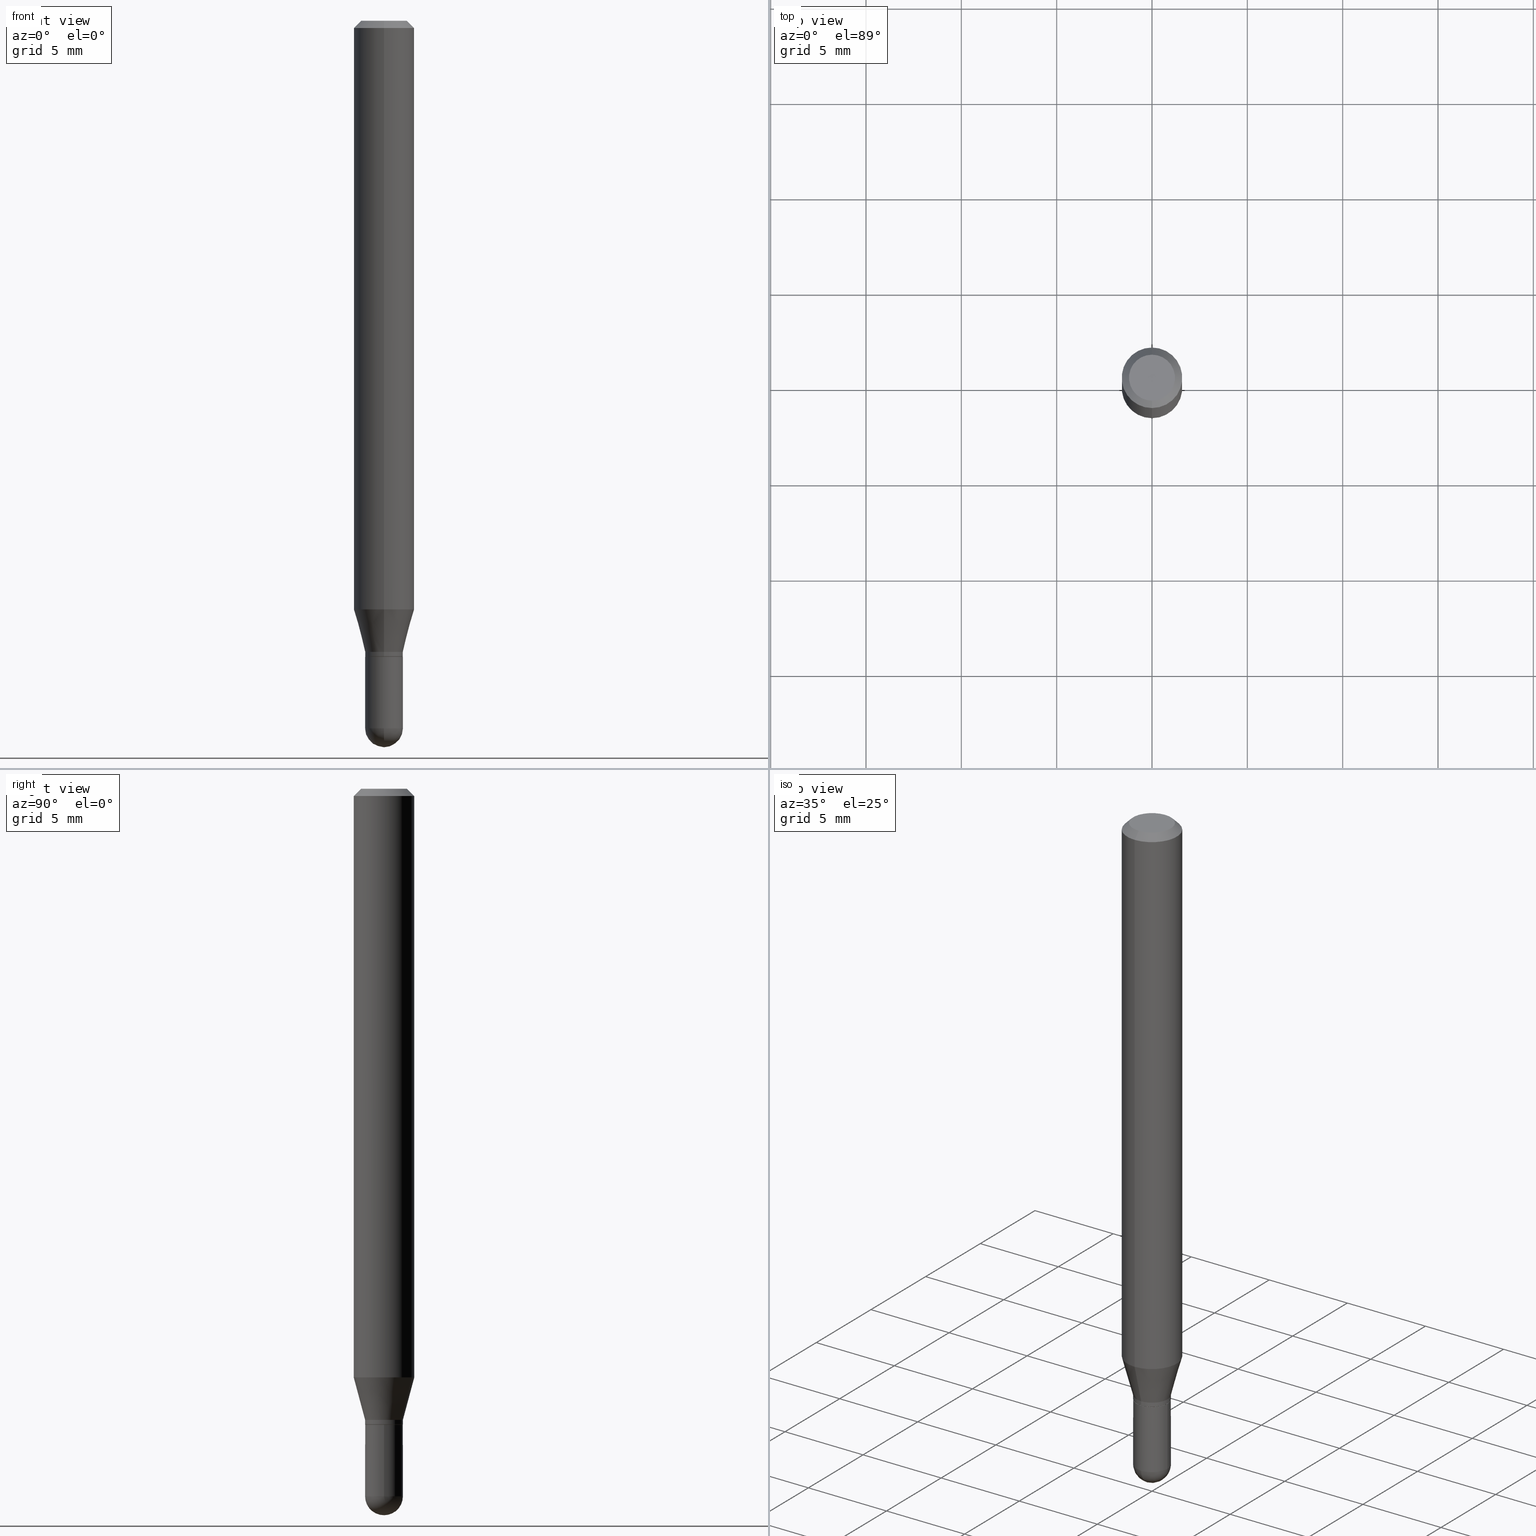
[diagram: canonical four-view strip — front | top / right | iso, engineering-drawing reading convention]
A machine part, canonical four-view strip (front | top / right | iso — engineering-drawing reading convention). The complete STEP part file that produces these views, byte-faithful:
ISO-10303-21;
HEADER;
FILE_DESCRIPTION (( 'STEP AP203' ),
    '1' );
FILE_NAME ('39110.STEP',
    '2024-03-08T12:44:43',
    ( '' ),
    ( '' ),
    'SwSTEP 2.0',
    'SolidWorks 2023',
    '' );
FILE_SCHEMA (( 'CONFIG_CONTROL_DESIGN' ));
ENDSEC;

DATA;
#1 = COORDINATED_UNIVERSAL_TIME_OFFSET ( 5, 0, .BEHIND. ) ;
#2 = DIRECTION ( 'NONE',  ( 1.000000000000000000, -6.982962677686266711E-15, 0.000000000000000000 ) ) ;
#3 = DIRECTION ( 'NONE',  ( -1.000000000000000000, 6.982962677686265922E-15, -4.883557194083112340E-29 ) ) ;
#4 = CARTESIAN_POINT ( 'NONE',  ( 8.758191564929115309E-45, -1.250185265265728213E-30, -3.581034872216010807E-16 ) ) ;
#5 = CONICAL_SURFACE ( 'NONE', #298, 0.06250000000000001388, 0.7853981633974473908 ) ;
#6 = ADVANCED_FACE ( 'NONE', ( #502 ), #104, .T. ) ;
#7 = CARTESIAN_POINT ( 'NONE',  ( 2.774669383143552228E-16, 0.03904999999999496374, -1.460950000000000193 ) ) ;
#8 = AXIS2_PLACEMENT_3D ( 'NONE', #336, #501, #382 ) ;
#9 = CC_DESIGN_PERSON_AND_ORGANIZATION_ASSIGNMENT ( #70, #28, ( #58 ) ) ;
#10 = VERTEX_POINT ( 'NONE', #338 ) ;
#11 = DIRECTION ( 'NONE',  ( -2.445715240831873182E-29, 3.491128430402830124E-15, 1.000000000000000000 ) ) ;
#12 = ORIENTED_EDGE ( 'NONE', *, *, #458, .T. ) ;
#13 = DIRECTION ( 'NONE',  ( 5.024295867788190974E-15, 0.7071067811865681119, 0.7071067811865270336 ) ) ;
#14 = ADVANCED_FACE ( 'NONE', ( #62 ), #496, .F. ) ;
#15 = CARTESIAN_POINT ( 'NONE',  ( 2.756905814749515687E-16, 0.03854999999999541432, -1.313000000000000389 ) ) ;
#16 = VECTOR ( 'NONE', #320, 39.37007874015748143 ) ;
#17 = CC_DESIGN_SECURITY_CLASSIFICATION ( #439, ( #140 ) ) ;
#18 = CYLINDRICAL_SURFACE ( 'NONE', #393, 0.03905000000000000832 ) ;
#19 = ORIENTED_EDGE ( 'NONE', *, *, #435, .F. ) ;
#20 = CARTESIAN_POINT ( 'NONE',  ( 0.03905000000000000832, -2.726846925636487675E-16, 1.904147030948313202E-30 ) ) ;
#21 = ORIENTED_EDGE ( 'NONE', *, *, #22, .T. ) ;
#22 = EDGE_CURVE ( 'NONE', #114, #451, #86, .T. ) ;
#23 = ORIENTED_EDGE ( 'NONE', *, *, #396, .F. ) ;
#24 = CARTESIAN_POINT ( 'NONE',  ( 2.972726297299607962E-29, -4.243408684315521466E-15, -1.215483408562511247 ) ) ;
#25 = DIRECTION ( 'NONE',  ( -6.982962677686265922E-15, -1.000000000000000000, 3.491128430402830124E-15 ) ) ;
#26 = SECURITY_CLASSIFICATION_LEVEL ( 'unclassified' ) ;
#27 = DIRECTION ( 'NONE',  ( -6.982962677686265922E-15, -1.000000000000000000, 0.000000000000000000 ) ) ;
#28 = PERSON_AND_ORGANIZATION_ROLE ( 'creator' ) ;
#29 = FACE_OUTER_BOUND ( 'NONE', #398, .T. ) ;
#30 = AXIS2_PLACEMENT_3D ( 'NONE', #24, #133, #250 ) ;
#31 = LOCAL_TIME ( 7, 44, 43.00000000000000000, #220 ) ;
#32 = COORDINATED_UNIVERSAL_TIME_OFFSET ( 5, 0, .BEHIND. ) ;
#33 = DIRECTION ( 'NONE',  ( -6.982962677686265133E-15, -1.000000000000000000, 3.491128430402829729E-15 ) ) ;
#34 = DATE_AND_TIME ( #353, #95 ) ;
#35 = CARTESIAN_POINT ( 'NONE',  ( 0.000000000000000000, 0.000000000000000000, 0.000000000000000000 ) ) ;
#36 = ORIENTED_EDGE ( 'NONE', *, *, #285, .T. ) ;
#37 = APPROVAL_ROLE ( '' ) ;
#38 = DIRECTION ( 'NONE',  ( -2.445715240831873182E-29, 3.491128430402830124E-15, 1.000000000000000000 ) ) ;
#39 = AXIS2_PLACEMENT_3D ( 'NONE', #156, #38, #277 ) ;
#40 = AXIS2_PLACEMENT_3D ( 'NONE', #80, #168, #42 ) ;
#41 = SPHERICAL_SURFACE ( 'NONE', #504, 0.03905000000000012628 ) ;
#42 = DIRECTION ( 'NONE',  ( 6.982962677686265922E-15, 1.000000000000000000, -3.483106191921934765E-15 ) ) ;
#43 = EDGE_CURVE ( 'NONE', #378, #10, #366, .T. ) ;
#44 = FACE_OUTER_BOUND ( 'NONE', #416, .T. ) ;
#45 = CIRCLE ( 'NONE', #264, 0.03905000000000012628 ) ;
#46 = FACE_OUTER_BOUND ( 'NONE', #344, .T. ) ;
#47 = VERTEX_POINT ( 'NONE', #394 ) ;
#48 = CARTESIAN_POINT ( 'NONE',  ( 3.186766958803931544E-29, -4.548940344814889109E-15, -1.303000000000000380 ) ) ;
#49 = EDGE_CURVE ( 'NONE', #378, #92, #354, .T. ) ;
#50 = CARTESIAN_POINT ( 'NONE',  ( -2.726846925636181991E-16, -0.03905000000000474758, -1.303000000000000380 ) ) ;
#51 = EDGE_LOOP ( 'NONE', ( #21, #190, #342, #23 ) ) ;
#52 = FACE_OUTER_BOUND ( 'NONE', #251, .T. ) ;
#53 = CONICAL_SURFACE ( 'NONE', #40, 0.06250000000000001388, 0.7853981633974473908 ) ;
#54 = VERTEX_POINT ( 'NONE', #221 ) ;
#55 = CARTESIAN_POINT ( 'NONE',  ( 3.663194072738837225E-29, -5.244395376890724291E-15, -1.500000000000000444 ) ) ;
#56 = ORIENTED_EDGE ( 'NONE', *, *, #222, .F. ) ;
#57 = DIRECTION ( 'NONE',  ( -1.807323732225331323E-15, -0.2588190451025183525, 0.9659258262890689783 ) ) ;
#58 = PRODUCT_DEFINITION ( 'UNKNOWN', '', #140, #296 ) ;
#59 = ORIENTED_EDGE ( 'NONE', *, *, #390, .T. ) ;
#60 = UNCERTAINTY_MEASURE_WITH_UNIT (LENGTH_MEASURE( 1.000000000000000082E-05 ), #102, 'distance_accuracy_value', 'NONE');
#61 = DIRECTION ( 'NONE',  ( -2.445715240831873182E-29, 3.491128430402830124E-15, 1.000000000000000000 ) ) ;
#62 = FACE_OUTER_BOUND ( 'NONE', #387, .T. ) ;
#63 = AXIS2_PLACEMENT_3D ( 'NONE', #466, #149, #276 ) ;
#64 = SHAPE_DEFINITION_REPRESENTATION ( #432, #164 ) ;
#65 = VERTEX_POINT ( 'NONE', #391 ) ;
#66 = ADVANCED_FACE ( 'NONE', ( #315 ), #399, .T. ) ;
#67 = DIRECTION ( 'NONE',  ( 1.000000000000000000, 0.000000000000000000, 0.000000000000000000 ) ) ;
#68 = DIRECTION ( 'NONE',  ( -4.851104656540959542E-15, -0.7071067811865493491, -0.7071067811865456854 ) ) ;
#69 = CC_DESIGN_DATE_AND_TIME_ASSIGNMENT ( #34, #106, ( #58 ) ) ;
#70 = PERSON_AND_ORGANIZATION ( #370, #490 ) ;
#71 = DIRECTION ( 'NONE',  ( -2.445715240831873182E-29, 3.491128430402830124E-15, 1.000000000000000000 ) ) ;
#72 = VECTOR ( 'NONE', #205, 39.37007874015748143 ) ;
#73 = PERSON_AND_ORGANIZATION ( #370, #490 ) ;
#74 = DIRECTION ( 'NONE',  ( 1.000000000000000000, -6.982962677686265133E-15, 0.000000000000000000 ) ) ;
#75 = ORIENTED_EDGE ( 'NONE', *, *, #228, .F. ) ;
#76 = DATE_TIME_ROLE ( 'classification_date' ) ;
#77 = DIRECTION ( 'NONE',  ( -2.445715240831873463E-29, 3.491128430402830124E-15, 1.000000000000000000 ) ) ;
#78 = DIRECTION ( 'NONE',  ( -6.982962677686265133E-15, -1.000000000000000000, 3.491128430402830124E-15 ) ) ;
#79 = CIRCLE ( 'NONE', #130, 0.03905000000000019567 ) ;
#80 = CARTESIAN_POINT ( 'NONE',  ( 3.668572861247897004E-31, -5.236692645604369505E-17, -0.01500000000000035853 ) ) ;
#81 = ADVANCED_FACE ( 'NONE', ( #29 ), #198, .T. ) ;
#82 = CARTESIAN_POINT ( 'NONE',  ( 2.739142246355506265E-16, 0.03854999999999541432, -1.313000000000000389 ) ) ;
#83 = ORIENTED_EDGE ( 'NONE', *, *, #222, .T. ) ;
#84 = CARTESIAN_POINT ( 'NONE',  ( 3.569368228036930558E-29, -5.105661907733563837E-15, -1.460950000000000193 ) ) ;
#85 = EDGE_LOOP ( 'NONE', ( #265, #126 ) ) ;
#86 = CIRCLE ( 'NONE', #297, 0.03905000000000019567 ) ;
#87 = VECTOR ( 'NONE', #288, 39.37007874015748143 ) ;
#88 = DIRECTION ( 'NONE',  ( 1.000000000000000000, -6.982962677686265922E-15, 4.883557194083112340E-29 ) ) ;
#89 = CARTESIAN_POINT ( 'NONE',  ( 3.668572861247897004E-31, -5.236692645604369505E-17, -0.01500000000000035853 ) ) ;
#90 = VERTEX_POINT ( 'NONE', #192 ) ;
#91 = CARTESIAN_POINT ( 'NONE',  ( -3.773273898774342241E-16, -0.04750000000000004219, -1.922748867774664941E-16 ) ) ;
#92 = VERTEX_POINT ( 'NONE', #507 ) ;
#93 = CARTESIAN_POINT ( 'NONE',  ( 2.774669383143515743E-16, 0.03904999999999547722, -1.312500000000000222 ) ) ;
#94 = AXIS2_PLACEMENT_3D ( 'NONE', #270, #224, #352 ) ;
#95 = LOCAL_TIME ( 7, 44, 43.00000000000000000, #1 ) ;
#96 = ORIENTED_EDGE ( 'NONE', *, *, #301, .T. ) ;
#97 = EDGE_CURVE ( 'NONE', #216, #160, #234, .T. ) ;
#98 = DIRECTION ( 'NONE',  ( -6.982962677686265922E-15, -1.000000000000000000, 0.000000000000000000 ) ) ;
#99 = CARTESIAN_POINT ( 'NONE',  ( 3.210001253591834077E-29, -4.582106064903715326E-15, -1.312500000000000222 ) ) ;
#100 = DIRECTION ( 'NONE',  ( -2.445468806185136597E-29, 3.491481338843145583E-15, 1.000000000000000000 ) ) ;
#101 = ORIENTED_EDGE ( 'NONE', *, *, #379, .F. ) ;
#102 =( CONVERSION_BASED_UNIT ( 'INCH', #459 ) LENGTH_UNIT ( ) NAMED_UNIT ( #461 ) );
#103 = ADVANCED_FACE ( 'NONE', ( #464 ), #419, .T. ) ;
#104 = CYLINDRICAL_SURFACE ( 'NONE', #384, 0.03905000000000019567 ) ;
#105 = PLANE ( 'NONE',  #63 ) ;
#106 = DATE_TIME_ROLE ( 'creation_date' ) ;
#107 = FACE_OUTER_BOUND ( 'NONE', #255, .T. ) ;
#108 = CALENDAR_DATE ( 2024, 8, 3 ) ;
#109 = CARTESIAN_POINT ( 'NONE',  ( 8.758191564929115309E-45, -1.250185265265728213E-30, -3.581034872216010807E-16 ) ) ;
#110 = APPLICATION_CONTEXT ( 'configuration controlled 3d designs of mechanical parts and assemblies' ) ;
#111 = VECTOR ( 'NONE', #68, 39.37007874015748143 ) ;
#112 = CIRCLE ( 'NONE', #348, 0.03905000000000019567 ) ;
#113 = EDGE_CURVE ( 'NONE', #300, #448, #154, .T. ) ;
#114 = VERTEX_POINT ( 'NONE', #436 ) ;
#115 = CC_DESIGN_APPROVAL ( #181, ( #140 ) ) ;
#116 = CC_DESIGN_PERSON_AND_ORGANIZATION_ASSIGNMENT ( #223, #510, ( #439 ) ) ;
#117 =( NAMED_UNIT ( * ) SI_UNIT ( $, .STERADIAN. ) SOLID_ANGLE_UNIT ( ) );
#118 = DIRECTION ( 'NONE',  ( -6.982962677686265922E-15, -1.000000000000000000, 0.000000000000000000 ) ) ;
#119 = CARTESIAN_POINT ( 'NONE',  ( -4.287811248607204268E-16, -0.06250000000000006939, -0.01500000000000014169 ) ) ;
#120 = DIRECTION ( 'NONE',  ( -6.982962677686265922E-15, -1.000000000000000000, 0.000000000000000000 ) ) ;
#121 = CONICAL_SURFACE ( 'NONE', #177, 0.03905000000000019567, 0.2617993877991504625 ) ;
#122 = VECTOR ( 'NONE', #299, 39.37007874015748143 ) ;
#123 = CARTESIAN_POINT ( 'NONE',  ( -2.691932112247734171E-16, -0.03855000000000458060, -1.313000000000000389 ) ) ;
#124 = ORIENTED_EDGE ( 'NONE', *, *, #375, .F. ) ;
#125 = DIRECTION ( 'NONE',  ( -6.982962677686265922E-15, -1.000000000000000000, 0.000000000000000000 ) ) ;
#126 = ORIENTED_EDGE ( 'NONE', *, *, #129, .T. ) ;
#127 = DIRECTION ( 'NONE',  ( -2.445715240831873182E-29, 3.491128430402830124E-15, 1.000000000000000000 ) ) ;
#128 = ORIENTED_EDGE ( 'NONE', *, *, #426, .F. ) ;
#129 = EDGE_CURVE ( 'NONE', #374, #90, #289, .T. ) ;
#130 = AXIS2_PLACEMENT_3D ( 'NONE', #322, #403, #479 ) ;
#131 = CARTESIAN_POINT ( 'NONE',  ( 4.440892098500626162E-16, 0.06250000000000001388, -2.181955269001769074E-16 ) ) ;
#132 = EDGE_LOOP ( 'NONE', ( #19, #83, #455, #142 ) ) ;
#133 = DIRECTION ( 'NONE',  ( -2.445715240831873182E-29, 3.491128430402830124E-15, 1.000000000000000000 ) ) ;
#134 = ORIENTED_EDGE ( 'NONE', *, *, #43, .T. ) ;
#135 = CARTESIAN_POINT ( 'NONE',  ( 0.03905000000000000832, -5.115282022505621222E-15, -1.460950000000000193 ) ) ;
#136 = ADVANCED_FACE ( 'NONE', ( #107 ), #503, .T. ) ;
#137 = DIRECTION ( 'NONE',  ( -6.982962677686265922E-15, -1.000000000000000000, 3.491128430402830124E-15 ) ) ;
#138 = DIRECTION ( 'NONE',  ( -2.445715240831873182E-29, 3.491128430402830124E-15, 1.000000000000000000 ) ) ;
#139 = AXIS2_PLACEMENT_3D ( 'NONE', #151, #189, #182 ) ;
#140 = PRODUCT_DEFINITION_FORMATION_WITH_SPECIFIED_SOURCE ( 'ANY', '', #232, .NOT_KNOWN. ) ;
#141 = CARTESIAN_POINT ( 'NONE',  ( 3.211224111212249912E-29, -4.583851629118917536E-15, -1.313000000000000389 ) ) ;
#142 = ORIENTED_EDGE ( 'NONE', *, *, #97, .F. ) ;
#143 = EDGE_CURVE ( 'NONE', #451, #300, #267, .T. ) ;
#144 = CARTESIAN_POINT ( 'NONE',  ( -4.364351673553916694E-16, -0.06250000000000001388, 2.181955269001769074E-16 ) ) ;
#145 = ORIENTED_EDGE ( 'NONE', *, *, #49, .F. ) ;
#146 = DIRECTION ( 'NONE',  ( 2.438088387897960049E-29, -3.491481338843145188E-15, -1.000000000000000000 ) ) ;
#147 = AXIS2_PLACEMENT_3D ( 'NONE', #231, #463, #118 ) ;
#148 = APPROVAL_STATUS ( 'not_yet_approved' ) ;
#149 = DIRECTION ( 'NONE',  ( 2.445715240831872622E-29, -3.491128430402830124E-15, -1.000000000000000000 ) ) ;
#150 = COORDINATED_UNIVERSAL_TIME_OFFSET ( 5, 0, .BEHIND. ) ;
#151 = CARTESIAN_POINT ( 'NONE',  ( 3.572707652396175485E-29, -5.100879661982893620E-15, -1.460950000000000193 ) ) ;
#152 = EDGE_CURVE ( 'NONE', #160, #47, #488, .T. ) ;
#153 = CALENDAR_DATE ( 2024, 8, 3 ) ;
#154 = LINE ( 'NONE', #346, #305 ) ;
#155 = CIRCLE ( 'NONE', #199, 0.03855000000000000093 ) ;
#156 = CARTESIAN_POINT ( 'NONE',  ( 3.211224111212249912E-29, -4.583851629118917536E-15, -1.313000000000000389 ) ) ;
#157 = ADVANCED_FACE ( 'NONE', ( #187 ), #105, .F. ) ;
#158 = CARTESIAN_POINT ( 'NONE',  ( 3.210001253591834077E-29, -4.582106064903715326E-15, -1.312500000000000222 ) ) ;
#159 = CARTESIAN_POINT ( 'NONE',  ( -4.364351673553621364E-16, -0.06250000000000427436, -1.215483408562511025 ) ) ;
#160 = VERTEX_POINT ( 'NONE', #431 ) ;
#161 = CIRCLE ( 'NONE', #279, 0.03905000000000019567 ) ;
#162 = CIRCLE ( 'NONE', #8, 0.03905000000000000138 ) ;
#163 = CARTESIAN_POINT ( 'NONE',  ( 0.000000000000000000, 0.000000000000000000, 0.000000000000000000 ) ) ;
#164 = ADVANCED_BREP_SHAPE_REPRESENTATION ( '39110', ( #474, #477, #420 ), #480 ) ;
#165 = LINE ( 'NONE', #131, #16 ) ;
#166 = ORIENTED_EDGE ( 'NONE', *, *, #285, .F. ) ;
#167 = EDGE_CURVE ( 'NONE', #413, #216, #330, .T. ) ;
#168 = DIRECTION ( 'NONE',  ( 2.445715240831873182E-29, -3.491128430402830124E-15, -1.000000000000000000 ) ) ;
#169 = ORIENTED_EDGE ( 'NONE', *, *, #143, .F. ) ;
#170 = AXIS2_PLACEMENT_3D ( 'NONE', #4, #201, #371 ) ;
#171 = LOCAL_TIME ( 7, 44, 43.00000000000000000, #150 ) ;
#172 = ORIENTED_EDGE ( 'NONE', *, *, #43, .F. ) ;
#173 = DIRECTION ( 'NONE',  ( -6.982962677686265922E-15, -1.000000000000000000, 3.483106191921934765E-15 ) ) ;
#174 = ORIENTED_EDGE ( 'NONE', *, *, #443, .T. ) ;
#175 = FACE_OUTER_BOUND ( 'NONE', #238, .T. ) ;
#176 = ORIENTED_EDGE ( 'NONE', *, *, #484, .F. ) ;
#177 = AXIS2_PLACEMENT_3D ( 'NONE', #363, #236, #440 ) ;
#178 = ORIENTED_EDGE ( 'NONE', *, *, #350, .F. ) ;
#179 = LINE ( 'NONE', #50, #281 ) ;
#180 = ORIENTED_EDGE ( 'NONE', *, *, #350, .T. ) ;
#181 = APPROVAL ( #148, 'UNSPECIFIED' ) ;
#182 = DIRECTION ( 'NONE',  ( 1.000000000000000000, -6.982962677686265133E-15, 0.000000000000000000 ) ) ;
#183 = DIRECTION ( 'NONE',  ( 1.839019923739601499E-15, 0.2588190451025251249, 0.9659258262890670910 ) ) ;
#184 = CIRCLE ( 'NONE', #478, 0.03855000000000000093 ) ;
#185 = PERSON_AND_ORGANIZATION_ROLE ( 'design_owner' ) ;
#186 = ADVANCED_FACE ( 'NONE', ( #425 ), #356, .F. ) ;
#187 = FACE_OUTER_BOUND ( 'NONE', #219, .T. ) ;
#188 = APPROVAL_DATE_TIME ( #318, #181 ) ;
#189 = DIRECTION ( 'NONE',  ( -2.445468806185136597E-29, 3.491481338843145583E-15, 1.000000000000000000 ) ) ;
#190 = ORIENTED_EDGE ( 'NONE', *, *, #143, .T. ) ;
#191 = COORDINATED_UNIVERSAL_TIME_OFFSET ( 5, 0, .BEHIND. ) ;
#192 = CARTESIAN_POINT ( 'NONE',  ( 0.03905000000000000138, -4.856999690464699711E-15, -1.313000000000000167 ) ) ;
#193 = AXIS2_PLACEMENT_3D ( 'NONE', #233, #400, #273 ) ;
#194 = CARTESIAN_POINT ( 'NONE',  ( -0.03905000000000000832, 2.774669383143191817E-16, -1.920844152744540988E-30 ) ) ;
#195 = DIRECTION ( 'NONE',  ( -2.445715240831873182E-29, 3.491128430402830124E-15, 1.000000000000000000 ) ) ;
#196 = DIRECTION ( 'NONE',  ( -4.937700262164674260E-15, -0.7071067811865632269, 0.7071067811865319186 ) ) ;
#197 = EDGE_LOOP ( 'NONE', ( #457, #381, #101, #467 ) ) ;
#198 = CONICAL_SURFACE ( 'NONE', #39, 0.03855000000000000093, 0.7853981633974739252 ) ;
#199 = AXIS2_PLACEMENT_3D ( 'NONE', #402, #127, #437 ) ;
#200 = ADVANCED_FACE ( 'NONE', ( #511 ), #475, .T. ) ;
#201 = DIRECTION ( 'NONE',  ( -2.445715240831873182E-29, 3.491128430402830124E-15, 1.000000000000000000 ) ) ;
#202 = ORIENTED_EDGE ( 'NONE', *, *, #152, .T. ) ;
#203 = DIRECTION ( 'NONE',  ( -2.445715240831873182E-29, 3.491128430402830124E-15, 1.000000000000000000 ) ) ;
#204 = ORIENTED_EDGE ( 'NONE', *, *, #258, .F. ) ;
#205 = DIRECTION ( 'NONE',  ( -2.445715240831873463E-29, 3.491128430402830124E-15, 1.000000000000000000 ) ) ;
#206 = ORIENTED_EDGE ( 'NONE', *, *, #339, .F. ) ;
#207 = ADVANCED_FACE ( 'NONE', ( #286 ), #41, .T. ) ;
#208 = AXIS2_PLACEMENT_3D ( 'NONE', #423, #71, #33 ) ;
#209 = CARTESIAN_POINT ( 'NONE',  ( -0.03905000000000000138, -4.565130391627653569E-15, -1.313000000000000167 ) ) ;
#210 = CIRCLE ( 'NONE', #324, 0.06250000000000000000 ) ;
#211 = ORIENTED_EDGE ( 'NONE', *, *, #396, .T. ) ;
#212 = PRODUCT_RELATED_PRODUCT_CATEGORY ( 'detail', '', ( #232 ) ) ;
#213 = CARTESIAN_POINT ( 'NONE',  ( 2.972726297299607962E-29, -4.243408684315521466E-15, -1.215483408562511247 ) ) ;
#214 = ORIENTED_EDGE ( 'NONE', *, *, #228, .T. ) ;
#215 = CARTESIAN_POINT ( 'NONE',  ( 3.211224111212249912E-29, -4.583851629118917536E-15, -1.313000000000000389 ) ) ;
#216 = VERTEX_POINT ( 'NONE', #7 ) ;
#217 = DIRECTION ( 'NONE',  ( -6.982962677686265922E-15, -1.000000000000000000, 4.370956789862821150E-15 ) ) ;
#218 = DIRECTION ( 'NONE',  ( -2.445715240831872622E-29, 3.491128430402830124E-15, 1.000000000000000000 ) ) ;
#219 = EDGE_LOOP ( 'NONE', ( #442, #134 ) ) ;
#220 = COORDINATED_UNIVERSAL_TIME_OFFSET ( 5, 0, .BEHIND. ) ;
#221 = CARTESIAN_POINT ( 'NONE',  ( -2.726846925636181991E-16, -0.03905000000000474758, -1.303000000000000380 ) ) ;
#222 = EDGE_CURVE ( 'NONE', #418, #47, #45, .T. ) ;
#223 = PERSON_AND_ORGANIZATION ( #370, #490 ) ;
#224 = DIRECTION ( 'NONE',  ( -2.445468806185136597E-29, 3.491481338843145583E-15, 1.000000000000000000 ) ) ;
#225 = VECTOR ( 'NONE', #13, 39.37007874015748143 ) ;
#226 = AXIS2_PLACEMENT_3D ( 'NONE', #407, #415, #493 ) ;
#227 = CARTESIAN_POINT ( 'NONE',  ( 0.000000000000000000, 0.000000000000000000, 0.000000000000000000 ) ) ;
#228 = EDGE_CURVE ( 'NONE', #451, #114, #112, .T. ) ;
#229 = DIRECTION ( 'NONE',  ( -2.445715240831873182E-29, 3.491128430402830124E-15, 1.000000000000000000 ) ) ;
#230 = APPROVAL_STATUS ( 'not_yet_approved' ) ;
#231 = CARTESIAN_POINT ( 'NONE',  ( 3.186766958803931544E-29, -4.548940344814889109E-15, -1.303000000000000380 ) ) ;
#232 = PRODUCT ( '39110', '39110', '', ( #505 ) ) ;
#233 = CARTESIAN_POINT ( 'NONE',  ( 0.000000000000000000, 0.000000000000000000, 0.000000000000000000 ) ) ;
#234 = CIRCLE ( 'NONE', #262, 0.03905000000000000832 ) ;
#235 = AXIS2_PLACEMENT_3D ( 'NONE', #312, #319, #2 ) ;
#236 = DIRECTION ( 'NONE',  ( -2.445715240831873182E-29, 3.491128430402830124E-15, 1.000000000000000000 ) ) ;
#237 = DIRECTION ( 'NONE',  ( -2.445715240831873182E-29, 3.491128430402830124E-15, 1.000000000000000000 ) ) ;
#238 = EDGE_LOOP ( 'NONE', ( #333, #36, #368, #176, #433 ) ) ;
#239 = ADVANCED_FACE ( 'NONE', ( #241 ), #5, .T. ) ;
#240 = CC_DESIGN_DATE_AND_TIME_ASSIGNMENT ( #469, #76, ( #439 ) ) ;
#241 = FACE_OUTER_BOUND ( 'NONE', #441, .T. ) ;
#242 = ORIENTED_EDGE ( 'NONE', *, *, #301, .F. ) ;
#243 = AXIS2_PLACEMENT_3D ( 'NONE', #509, #146, #308 ) ;
#244 = CC_DESIGN_APPROVAL ( #453, ( #439 ) ) ;
#245 = CARTESIAN_POINT ( 'NONE',  ( 3.572707652396175485E-29, -5.100879661982893620E-15, -1.460950000000000193 ) ) ;
#246 = ORIENTED_EDGE ( 'NONE', *, *, #49, .T. ) ;
#247 = DIRECTION ( 'NONE',  ( -6.982962677686265922E-15, -1.000000000000000000, 3.483106191921934765E-15 ) ) ;
#248 = ADVANCED_FACE ( 'NONE', ( #46 ), #385, .T. ) ;
#249 = ORIENTED_EDGE ( 'NONE', *, *, #268, .F. ) ;
#250 = DIRECTION ( 'NONE',  ( -6.982962677686265922E-15, -1.000000000000000000, 4.370956789862821150E-15 ) ) ;
#251 = EDGE_LOOP ( 'NONE', ( #56, #287, #295, #408 ) ) ;
#252 = CIRCLE ( 'NONE', #30, 0.06250000000000000000 ) ;
#253 = CIRCLE ( 'NONE', #226, 0.03905000000000012628 ) ;
#254 = DIRECTION ( 'NONE',  ( -2.445715240831873463E-29, 3.491128430402830124E-15, 1.000000000000000000 ) ) ;
#255 = EDGE_LOOP ( 'NONE', ( #166, #202, #293, #410, #261 ) ) ;
#256 = CARTESIAN_POINT ( 'NONE',  ( -2.726846925636500494E-16, -0.03905000000000019567, 1.363285652072311966E-16 ) ) ;
#257 = ORIENTED_EDGE ( 'NONE', *, *, #379, .T. ) ;
#258 = EDGE_CURVE ( 'NONE', #10, #378, #438, .T. ) ;
#259 = DIRECTION ( 'NONE',  ( -6.982962677686265922E-15, -1.000000000000000000, 3.491128430402830124E-15 ) ) ;
#260 = CC_DESIGN_PERSON_AND_ORGANIZATION_ASSIGNMENT ( #73, #185, ( #232 ) ) ;
#261 = ORIENTED_EDGE ( 'NONE', *, *, #129, .F. ) ;
#262 = AXIS2_PLACEMENT_3D ( 'NONE', #362, #434, #74 ) ;
#263 = APPROVAL_ROLE ( '' ) ;
#264 = AXIS2_PLACEMENT_3D ( 'NONE', #84, #3, #125 ) ;
#265 = ORIENTED_EDGE ( 'NONE', *, *, #506, .T. ) ;
#266 = APPLICATION_PROTOCOL_DEFINITION ( 'international standard', 'config_control_design', 1994, #110 ) ;
#267 = LINE ( 'NONE', #397, #468 ) ;
#268 = EDGE_CURVE ( 'NONE', #448, #65, #165, .T. ) ;
#269 = APPLICATION_PROTOCOL_DEFINITION ( 'international standard', 'config_control_design', 1994, #512 ) ;
#270 = CARTESIAN_POINT ( 'NONE',  ( 3.572707652396175485E-29, -5.100879661982893620E-15, -1.460950000000000193 ) ) ;
#271 = CC_DESIGN_PERSON_AND_ORGANIZATION_ASSIGNMENT ( #306, #309, ( #140 ) ) ;
#272 = CALENDAR_DATE ( 2024, 8, 3 ) ;
#273 = DIRECTION ( 'NONE',  ( 1.000000000000000000, -6.982962677686266711E-15, 4.876176775795935232E-29 ) ) ;
#274 = ORIENTED_EDGE ( 'NONE', *, *, #22, .F. ) ;
#275 = PERSON_AND_ORGANIZATION ( #370, #490 ) ;
#276 = DIRECTION ( 'NONE',  ( 6.982962677686265922E-15, 1.000000000000000000, -3.491128430402830124E-15 ) ) ;
#277 = DIRECTION ( 'NONE',  ( -6.982962677686265133E-15, -1.000000000000000000, 0.000000000000000000 ) ) ;
#278 = FACE_OUTER_BOUND ( 'NONE', #372, .T. ) ;
#279 = AXIS2_PLACEMENT_3D ( 'NONE', #48, #203, #373 ) ;
#280 = AXIS2_PLACEMENT_3D ( 'NONE', #245, #406, #329 ) ;
#281 = VECTOR ( 'NONE', #57, 39.37007874015748854 ) ;
#282 = LINE ( 'NONE', #82, #225 ) ;
#283 = ORIENTED_EDGE ( 'NONE', *, *, #443, .F. ) ;
#284 = ADVANCED_FACE ( 'NONE', ( #326 ), #121, .T. ) ;
#285 = EDGE_CURVE ( 'NONE', #160, #374, #485, .T. ) ;
#286 = FACE_OUTER_BOUND ( 'NONE', #132, .T. ) ;
#287 = ORIENTED_EDGE ( 'NONE', *, *, #435, .T. ) ;
#288 = DIRECTION ( 'NONE',  ( -2.445468806185136877E-29, 3.491481338843145188E-15, 1.000000000000000000 ) ) ;
#289 = CIRCLE ( 'NONE', #235, 0.03905000000000000138 ) ;
#290 = CARTESIAN_POINT ( 'NONE',  ( 3.569368228036930558E-29, -5.105661907733563837E-15, -1.460950000000000193 ) ) ;
#291 = ORIENTED_EDGE ( 'NONE', *, *, #458, .F. ) ;
#292 = SPHERICAL_SURFACE ( 'NONE', #452, 0.03905000000000012628 ) ;
#293 = ORIENTED_EDGE ( 'NONE', *, *, #337, .T. ) ;
#294 = CARTESIAN_POINT ( 'NONE',  ( 0.000000000000000000, 0.000000000000000000, 0.000000000000000000 ) ) ;
#295 = ORIENTED_EDGE ( 'NONE', *, *, #167, .F. ) ;
#296 = DESIGN_CONTEXT ( 'detailed design', #110, 'design' ) ;
#297 = AXIS2_PLACEMENT_3D ( 'NONE', #99, #389, #27 ) ;
#298 = AXIS2_PLACEMENT_3D ( 'NONE', #482, #405, #447 ) ;
#299 = DIRECTION ( 'NONE',  ( 4.937700262164543309E-15, 0.7071067811865444641, -0.7071067811865505703 ) ) ;
#300 = VERTEX_POINT ( 'NONE', #476 ) ;
#301 = EDGE_CURVE ( 'NONE', #422, #500, #155, .T. ) ;
#302 = EDGE_LOOP ( 'NONE', ( #257, #383, #128, #483 ) ) ;
#303 =( LENGTH_UNIT ( ) NAMED_UNIT ( * ) SI_UNIT ( $, .METRE. ) );
#304 = EDGE_LOOP ( 'NONE', ( #450, #481, #460, #283 ) ) ;
#305 = VECTOR ( 'NONE', #183, 39.37007874015748854 ) ;
#306 = PERSON_AND_ORGANIZATION ( #370, #490 ) ;
#307 = CC_DESIGN_APPROVAL ( #358, ( #58 ) ) ;
#308 = DIRECTION ( 'NONE',  ( -1.000000000000000000, 6.982962677686265922E-15, -4.876176775795935793E-29 ) ) ;
#309 = PERSON_AND_ORGANIZATION_ROLE ( 'design_supplier' ) ;
#310 = DIRECTION ( 'NONE',  ( -6.982962677686265133E-15, -1.000000000000000000, 3.491128430402829729E-15 ) ) ;
#311 = DIRECTION ( 'NONE',  ( 0.000000000000000000, 0.000000000000000000, 1.000000000000000000 ) ) ;
#312 = CARTESIAN_POINT ( 'NONE',  ( 3.210900542521084585E-29, -4.584314997901050598E-15, -1.313000000000000167 ) ) ;
#313 = APPROVAL_ROLE ( '' ) ;
#314 = CLOSED_SHELL ( 'NONE', ( #6, #248, #239, #66, #284, #103, #200, #317, #157, #14, #81, #357 ) ) ;
#315 = FACE_OUTER_BOUND ( 'NONE', #302, .T. ) ;
#316 = AXIS2_PLACEMENT_3D ( 'NONE', #364, #11, #325 ) ;
#317 = ADVANCED_FACE ( 'NONE', ( #278 ), #53, .T. ) ;
#318 = DATE_AND_TIME ( #108, #171 ) ;
#319 = DIRECTION ( 'NONE',  ( -2.445468806185136597E-29, 3.491481338843145583E-15, 1.000000000000000000 ) ) ;
#320 = DIRECTION ( 'NONE',  ( -2.445715240831873463E-29, 3.491128430402830124E-15, 1.000000000000000000 ) ) ;
#321 = EDGE_CURVE ( 'NONE', #500, #114, #444, .T. ) ;
#322 = CARTESIAN_POINT ( 'NONE',  ( 3.186766958803931544E-29, -4.548940344814889109E-15, -1.303000000000000380 ) ) ;
#323 = ORIENTED_EDGE ( 'NONE', *, *, #321, .T. ) ;
#324 = AXIS2_PLACEMENT_3D ( 'NONE', #213, #449, #217 ) ;
#325 = DIRECTION ( 'NONE',  ( -6.982962677686265133E-15, -1.000000000000000000, 0.000000000000000000 ) ) ;
#326 = FACE_OUTER_BOUND ( 'NONE', #197, .T. ) ;
#327 = VERTEX_POINT ( 'NONE', #159 ) ;
#328 = EDGE_CURVE ( 'NONE', #65, #92, #462, .T. ) ;
#329 = DIRECTION ( 'NONE',  ( 1.000000000000000000, -6.982962677686265133E-15, 0.000000000000000000 ) ) ;
#330 = CIRCLE ( 'NONE', #139, 0.03905000000000000832 ) ;
#331 = EDGE_CURVE ( 'NONE', #54, #300, #79, .T. ) ;
#332 =( NAMED_UNIT ( * ) PLANE_ANGLE_UNIT ( ) SI_UNIT ( $, .RADIAN. ) );
#333 = ORIENTED_EDGE ( 'NONE', *, *, #97, .T. ) ;
#334 = DIRECTION ( 'NONE',  ( 1.000000000000000000, -6.982962677686266711E-15, 4.876176775795935232E-29 ) ) ;
#335 = CARTESIAN_POINT ( 'NONE',  ( 0.000000000000000000, 0.000000000000000000, 0.000000000000000000 ) ) ;
#336 = CARTESIAN_POINT ( 'NONE',  ( 3.210900542521084585E-29, -4.584314997901050598E-15, -1.313000000000000167 ) ) ;
#337 = EDGE_CURVE ( 'NONE', #47, #413, #392, .T. ) ;
#338 = CARTESIAN_POINT ( 'NONE',  ( 3.840629472727450339E-16, 0.04750000000000004219, -5.239320876657356674E-16 ) ) ;
#339 = EDGE_CURVE ( 'NONE', #300, #54, #161, .T. ) ;
#340 = AXIS2_PLACEMENT_3D ( 'NONE', #141, #218, #25 ) ;
#341 = DIRECTION ( 'NONE',  ( -2.445468806185136877E-29, 3.491481338843145188E-15, 1.000000000000000000 ) ) ;
#342 = ORIENTED_EDGE ( 'NONE', *, *, #331, .F. ) ;
#343 = CARTESIAN_POINT ( 'NONE',  ( -2.691932112247734171E-16, -0.03855000000000458060, -1.313000000000000389 ) ) ;
#344 = EDGE_LOOP ( 'NONE', ( #489, #180, #274, #486 ) ) ;
#345 = PERSON_AND_ORGANIZATION ( #370, #490 ) ;
#346 = CARTESIAN_POINT ( 'NONE',  ( 2.774669383143523138E-16, 0.03904999999999564375, -1.303000000000000380 ) ) ;
#347 = CLOSED_SHELL ( 'NONE', ( #428, #388, #186, #207, #136 ) ) ;
#348 = AXIS2_PLACEMENT_3D ( 'NONE', #158, #195, #120 ) ;
#349 = APPROVAL_STATUS ( 'not_yet_approved' ) ;
#350 = EDGE_CURVE ( 'NONE', #422, #451, #282, .T. ) ;
#351 = AXIS2_PLACEMENT_3D ( 'NONE', #495, #491, #173 ) ;
#352 = DIRECTION ( 'NONE',  ( 1.000000000000000000, -6.982962677686265133E-15, 0.000000000000000000 ) ) ;
#353 = CALENDAR_DATE ( 2024, 8, 3 ) ;
#354 = LINE ( 'NONE', #119, #111 ) ;
#355 = PERSON_AND_ORGANIZATION ( #370, #490 ) ;
#356 = PLANE ( 'NONE',  #243 ) ;
#357 = ADVANCED_FACE ( 'NONE', ( #44 ), #365, .T. ) ;
#358 = APPROVAL ( #349, 'UNSPECIFIED' ) ;
#359 = ORIENTED_EDGE ( 'NONE', *, *, #328, .F. ) ;
#360 = CALENDAR_DATE ( 2024, 8, 3 ) ;
#361 = AXIS2_PLACEMENT_3D ( 'NONE', #35, #471, #310 ) ;
#362 = CARTESIAN_POINT ( 'NONE',  ( 3.572707652396175485E-29, -5.100879661982893620E-15, -1.460950000000000193 ) ) ;
#363 = CARTESIAN_POINT ( 'NONE',  ( 3.186766958803931544E-29, -4.548940344814889109E-15, -1.303000000000000380 ) ) ;
#364 = CARTESIAN_POINT ( 'NONE',  ( 3.211224111212249912E-29, -4.583851629118917536E-15, -1.313000000000000389 ) ) ;
#365 = CYLINDRICAL_SURFACE ( 'NONE', #411, 0.03905000000000019567 ) ;
#366 = CIRCLE ( 'NONE', #427, 0.04750000000000004219 ) ;
#367 = VECTOR ( 'NONE', #254, 39.37007874015748143 ) ;
#368 = ORIENTED_EDGE ( 'NONE', *, *, #506, .F. ) ;
#369 = APPROVAL_PERSON_ORGANIZATION ( #345, #358, #313 ) ;
#370 = PERSON ( 'UNSPECIFIED', 'UNSPECIFIED', 'UNSPECIFIED', ('UNSPECIFIED'), ('UNSPECIFIED'), ('UNSPECIFIED') ) ;
#371 = DIRECTION ( 'NONE',  ( -6.982962677686265133E-15, -1.000000000000000000, 3.491128430402830124E-15 ) ) ;
#372 = EDGE_LOOP ( 'NONE', ( #145, #204, #12, #404 ) ) ;
#373 = DIRECTION ( 'NONE',  ( -6.982962677686265922E-15, -1.000000000000000000, 0.000000000000000000 ) ) ;
#374 = VERTEX_POINT ( 'NONE', #209 ) ;
#375 = EDGE_CURVE ( 'NONE', #500, #422, #184, .T. ) ;
#376 = EDGE_LOOP ( 'NONE', ( #249, #174, #59, #359 ) ) ;
#377 = DIRECTION ( 'NONE',  ( -6.982962677686265133E-15, -1.000000000000000000, 0.000000000000000000 ) ) ;
#378 = VERTEX_POINT ( 'NONE', #91 ) ;
#379 = EDGE_CURVE ( 'NONE', #327, #448, #252, .T. ) ;
#380 = LINE ( 'NONE', #20, #470 ) ;
#381 = ORIENTED_EDGE ( 'NONE', *, *, #113, .T. ) ;
#382 = DIRECTION ( 'NONE',  ( 1.000000000000000000, -6.982962677686266711E-15, 0.000000000000000000 ) ) ;
#383 = ORIENTED_EDGE ( 'NONE', *, *, #268, .T. ) ;
#384 = AXIS2_PLACEMENT_3D ( 'NONE', #335, #494, #137 ) ;
#385 = CONICAL_SURFACE ( 'NONE', #316, 0.03855000000000000093, 0.7853981633974739252 ) ;
#386 = LINE ( 'NONE', #412, #122 ) ;
#387 = EDGE_LOOP ( 'NONE', ( #124, #242 ) ) ;
#388 = ADVANCED_FACE ( 'NONE', ( #52 ), #292, .T. ) ;
#389 = DIRECTION ( 'NONE',  ( -2.445715240831873182E-29, 3.491128430402830124E-15, 1.000000000000000000 ) ) ;
#390 = EDGE_CURVE ( 'NONE', #327, #92, #499, .T. ) ;
#391 = CARTESIAN_POINT ( 'NONE',  ( 4.440892098500924943E-16, 0.06249999999999995837, -0.01500000000000057711 ) ) ;
#392 = CIRCLE ( 'NONE', #280, 0.03905000000000000832 ) ;
#393 = AXIS2_PLACEMENT_3D ( 'NONE', #294, #100, #334 ) ;
#394 = CARTESIAN_POINT ( 'NONE',  ( -2.726846925636134167E-16, -0.03905000000000517085, -1.460950000000000193 ) ) ;
#395 = APPROVAL_DATE_TIME ( #465, #358 ) ;
#396 = EDGE_CURVE ( 'NONE', #114, #54, #454, .T. ) ;
#397 = CARTESIAN_POINT ( 'NONE',  ( 2.774669383143204636E-16, 0.03905000000000019567, -1.363285652072311966E-16 ) ) ;
#398 = EDGE_LOOP ( 'NONE', ( #178, #96, #323, #75 ) ) ;
#399 = CYLINDRICAL_SURFACE ( 'NONE', #361, 0.06250000000000001388 ) ;
#400 = DIRECTION ( 'NONE',  ( -2.445468806185136597E-29, 3.491481338843145583E-15, 1.000000000000000000 ) ) ;
#401 = APPROVAL_PERSON_ORGANIZATION ( #508, #181, #263 ) ;
#402 = CARTESIAN_POINT ( 'NONE',  ( 3.211224111212249912E-29, -4.583851629118917536E-15, -1.313000000000000389 ) ) ;
#403 = DIRECTION ( 'NONE',  ( -2.445715240831873182E-29, 3.491128430402830124E-15, 1.000000000000000000 ) ) ;
#404 = ORIENTED_EDGE ( 'NONE', *, *, #328, .T. ) ;
#405 = DIRECTION ( 'NONE',  ( 2.445715240831873182E-29, -3.491128430402830124E-15, -1.000000000000000000 ) ) ;
#406 = DIRECTION ( 'NONE',  ( -2.445468806185136597E-29, 3.491481338843145583E-15, 1.000000000000000000 ) ) ;
#407 = CARTESIAN_POINT ( 'NONE',  ( 3.569368228036930558E-29, -5.105661907733563837E-15, -1.460950000000000193 ) ) ;
#408 = ORIENTED_EDGE ( 'NONE', *, *, #337, .F. ) ;
#409 = CARTESIAN_POINT ( 'NONE',  ( 3.569368228036930558E-29, -5.105661907733563837E-15, -1.460950000000000193 ) ) ;
#410 = ORIENTED_EDGE ( 'NONE', *, *, #484, .T. ) ;
#411 = AXIS2_PLACEMENT_3D ( 'NONE', #163, #61, #259 ) ;
#412 = CARTESIAN_POINT ( 'NONE',  ( 4.364351673553921131E-16, 0.06249999999999996531, -0.01500000000000057711 ) ) ;
#413 = VERTEX_POINT ( 'NONE', #135 ) ;
#414 = CC_DESIGN_PERSON_AND_ORGANIZATION_ASSIGNMENT ( #355, #424, ( #140 ) ) ;
#415 = DIRECTION ( 'NONE',  ( 1.000000000000000000, -7.105427357601001070E-15, 4.926315508542082329E-29 ) ) ;
#416 = EDGE_LOOP ( 'NONE', ( #169, #214, #211, #206 ) ) ;
#417 = CARTESIAN_POINT ( 'NONE',  ( 4.440892098500919026E-16, 0.06249999999999571176, -1.215483408562511469 ) ) ;
#418 = VERTEX_POINT ( 'NONE', #55 ) ;
#419 = CONICAL_SURFACE ( 'NONE', #147, 0.03905000000000019567, 0.2617993877991504625 ) ;
#420 = AXIS2_PLACEMENT_3D ( 'NONE', #227, #311, #67 ) ;
#421 = APPROVAL_DATE_TIME ( #473, #453 ) ;
#422 = VERTEX_POINT ( 'NONE', #15 ) ;
#423 = CARTESIAN_POINT ( 'NONE',  ( 0.000000000000000000, 0.000000000000000000, 0.000000000000000000 ) ) ;
#424 = PERSON_AND_ORGANIZATION_ROLE ( 'creator' ) ;
#425 = FACE_OUTER_BOUND ( 'NONE', #85, .T. ) ;
#426 = EDGE_CURVE ( 'NONE', #92, #65, #429, .T. ) ;
#427 = AXIS2_PLACEMENT_3D ( 'NONE', #109, #229, #78 ) ;
#428 = ADVANCED_FACE ( 'NONE', ( #175 ), #18, .T. ) ;
#429 = CIRCLE ( 'NONE', #351, 0.06250000000000001388 ) ;
#430 = LOCAL_TIME ( 7, 44, 43.00000000000000000, #191 ) ;
#431 = CARTESIAN_POINT ( 'NONE',  ( -0.03905000000000000832, -4.565130391627653569E-15, -1.460950000000000193 ) ) ;
#432 = PRODUCT_DEFINITION_SHAPE ( 'NONE', 'NONE',  #58 ) ;
#433 = ORIENTED_EDGE ( 'NONE', *, *, #167, .T. ) ;
#434 = DIRECTION ( 'NONE',  ( -2.445468806185136597E-29, 3.491481338843145583E-15, 1.000000000000000000 ) ) ;
#435 = EDGE_CURVE ( 'NONE', #418, #216, #253, .T. ) ;
#436 = CARTESIAN_POINT ( 'NONE',  ( -2.726846925636188894E-16, -0.03905000000000491411, -1.312500000000000222 ) ) ;
#437 = DIRECTION ( 'NONE',  ( -6.982962677686265133E-15, -1.000000000000000000, 0.000000000000000000 ) ) ;
#438 = CIRCLE ( 'NONE', #170, 0.04750000000000004219 ) ;
#439 = SECURITY_CLASSIFICATION ( '', '', #26 ) ;
#440 = DIRECTION ( 'NONE',  ( -6.982962677686265922E-15, -1.000000000000000000, 0.000000000000000000 ) ) ;
#441 = EDGE_LOOP ( 'NONE', ( #172, #246, #492, #291 ) ) ;
#442 = ORIENTED_EDGE ( 'NONE', *, *, #258, .T. ) ;
#443 = EDGE_CURVE ( 'NONE', #448, #327, #210, .T. ) ;
#444 = LINE ( 'NONE', #123, #497 ) ;
#445 = AXIS2_PLACEMENT_3D ( 'NONE', #89, #237, #247 ) ;
#446 = LOCAL_TIME ( 7, 44, 43.00000000000000000, #32 ) ;
#447 = DIRECTION ( 'NONE',  ( 6.982962677686265922E-15, 1.000000000000000000, -3.483106191921934765E-15 ) ) ;
#448 = VERTEX_POINT ( 'NONE', #417 ) ;
#449 = DIRECTION ( 'NONE',  ( -2.445715240831873182E-29, 3.491128430402830124E-15, 1.000000000000000000 ) ) ;
#450 = ORIENTED_EDGE ( 'NONE', *, *, #113, .F. ) ;
#451 = VERTEX_POINT ( 'NONE', #93 ) ;
#452 = AXIS2_PLACEMENT_3D ( 'NONE', #409, #456, #98 ) ;
#453 = APPROVAL ( #230, 'UNSPECIFIED' ) ;
#454 = LINE ( 'NONE', #256, #367 ) ;
#455 = ORIENTED_EDGE ( 'NONE', *, *, #152, .F. ) ;
#456 = DIRECTION ( 'NONE',  ( 1.000000000000000000, -6.982962677686265922E-15, 4.883557194083112340E-29 ) ) ;
#457 = ORIENTED_EDGE ( 'NONE', *, *, #331, .T. ) ;
#458 = EDGE_CURVE ( 'NONE', #10, #65, #386, .T. ) ;
#459 = LENGTH_MEASURE_WITH_UNIT ( LENGTH_MEASURE( 0.02539999999999999897 ), #303 );
#460 = ORIENTED_EDGE ( 'NONE', *, *, #472, .T. ) ;
#461 = DIMENSIONAL_EXPONENTS ( 1.000000000000000000, 0.000000000000000000, 0.000000000000000000, 0.000000000000000000, 0.000000000000000000, 0.000000000000000000, 0.000000000000000000 ) ;
#462 = CIRCLE ( 'NONE', #445, 0.06250000000000001388 ) ;
#463 = DIRECTION ( 'NONE',  ( -2.445715240831873182E-29, 3.491128430402830124E-15, 1.000000000000000000 ) ) ;
#464 = FACE_OUTER_BOUND ( 'NONE', #304, .T. ) ;
#465 = DATE_AND_TIME ( #272, #31 ) ;
#466 = CARTESIAN_POINT ( 'NONE',  ( 3.316907271900979054E-16, 0.04750000000000004219, -3.448803440549351024E-16 ) ) ;
#467 = ORIENTED_EDGE ( 'NONE', *, *, #472, .F. ) ;
#468 = VECTOR ( 'NONE', #77, 39.37007874015748143 ) ;
#469 = DATE_AND_TIME ( #153, #446 ) ;
#470 = VECTOR ( 'NONE', #341, 39.37007874015748143 ) ;
#471 = DIRECTION ( 'NONE',  ( -2.445715240831873182E-29, 3.491128430402830124E-15, 1.000000000000000000 ) ) ;
#472 = EDGE_CURVE ( 'NONE', #54, #327, #179, .T. ) ;
#473 = DATE_AND_TIME ( #360, #430 ) ;
#474 = MANIFOLD_SOLID_BREP ( 'Body-Move/Copy2[1]', #347 ) ;
#475 = CYLINDRICAL_SURFACE ( 'NONE', #208, 0.06250000000000001388 ) ;
#476 = CARTESIAN_POINT ( 'NONE',  ( 3.607780740822223794E-16, 0.03904999999999564375, -1.303000000000000380 ) ) ;
#477 = MANIFOLD_SOLID_BREP ( 'Body-Move/Copy2[2]', #314 ) ;
#478 = AXIS2_PLACEMENT_3D ( 'NONE', #215, #138, #377 ) ;
#479 = DIRECTION ( 'NONE',  ( -6.982962677686265922E-15, -1.000000000000000000, 0.000000000000000000 ) ) ;
#480 =( GEOMETRIC_REPRESENTATION_CONTEXT ( 3 ) GLOBAL_UNCERTAINTY_ASSIGNED_CONTEXT ( ( #60 ) ) GLOBAL_UNIT_ASSIGNED_CONTEXT ( ( #102, #332, #117 ) ) REPRESENTATION_CONTEXT ( 'NONE', 'WORKASPACE' ) );
#481 = ORIENTED_EDGE ( 'NONE', *, *, #339, .T. ) ;
#482 = CARTESIAN_POINT ( 'NONE',  ( 3.668572861247897004E-31, -5.236692645604369505E-17, -0.01500000000000035853 ) ) ;
#483 = ORIENTED_EDGE ( 'NONE', *, *, #390, .F. ) ;
#484 = EDGE_CURVE ( 'NONE', #413, #90, #380, .T. ) ;
#485 = LINE ( 'NONE', #194, #87 ) ;
#486 = ORIENTED_EDGE ( 'NONE', *, *, #321, .F. ) ;
#487 = DIRECTION ( 'NONE',  ( -6.982962677686265922E-15, -1.000000000000000000, 0.000000000000000000 ) ) ;
#488 = CIRCLE ( 'NONE', #94, 0.03905000000000000832 ) ;
#489 = ORIENTED_EDGE ( 'NONE', *, *, #375, .T. ) ;
#490 = ORGANIZATION ( 'UNSPECIFIED', 'UNSPECIFIED', '' ) ;
#491 = DIRECTION ( 'NONE',  ( -2.445715240831873182E-29, 3.491128430402830124E-15, 1.000000000000000000 ) ) ;
#492 = ORIENTED_EDGE ( 'NONE', *, *, #426, .T. ) ;
#493 = DIRECTION ( 'NONE',  ( 7.105427357601000281E-15, 1.000000000000000000, 0.000000000000000000 ) ) ;
#494 = DIRECTION ( 'NONE',  ( -2.445715240831873182E-29, 3.491128430402830124E-15, 1.000000000000000000 ) ) ;
#495 = CARTESIAN_POINT ( 'NONE',  ( 3.668572861247897004E-31, -5.236692645604369505E-17, -0.01500000000000035853 ) ) ;
#496 = PLANE ( 'NONE',  #340 ) ;
#497 = VECTOR ( 'NONE', #196, 39.37007874015748143 ) ;
#498 = APPROVAL_PERSON_ORGANIZATION ( #275, #453, #37 ) ;
#499 = LINE ( 'NONE', #144, #72 ) ;
#500 = VERTEX_POINT ( 'NONE', #343 ) ;
#501 = DIRECTION ( 'NONE',  ( -2.445468806185136597E-29, 3.491481338843145583E-15, 1.000000000000000000 ) ) ;
#502 = FACE_OUTER_BOUND ( 'NONE', #51, .T. ) ;
#503 = CYLINDRICAL_SURFACE ( 'NONE', #193, 0.03905000000000000832 ) ;
#504 = AXIS2_PLACEMENT_3D ( 'NONE', #290, #88, #487 ) ;
#505 = MECHANICAL_CONTEXT ( 'NONE', #512, 'mechanical' ) ;
#506 = EDGE_CURVE ( 'NONE', #90, #374, #162, .T. ) ;
#507 = CARTESIAN_POINT ( 'NONE',  ( -4.364351673553913736E-16, -0.06250000000000006939, -0.01500000000000014169 ) ) ;
#508 = PERSON_AND_ORGANIZATION ( #370, #490 ) ;
#509 = CARTESIAN_POINT ( 'NONE',  ( 2.726846925636807657E-16, 0.03904999999999541477, -1.313000000000000167 ) ) ;
#510 = PERSON_AND_ORGANIZATION_ROLE ( 'classification_officer' ) ;
#511 = FACE_OUTER_BOUND ( 'NONE', #376, .T. ) ;
#512 = APPLICATION_CONTEXT ( 'configuration controlled 3d designs of mechanical parts and assemblies' ) ;
ENDSEC;
END-ISO-10303-21;
